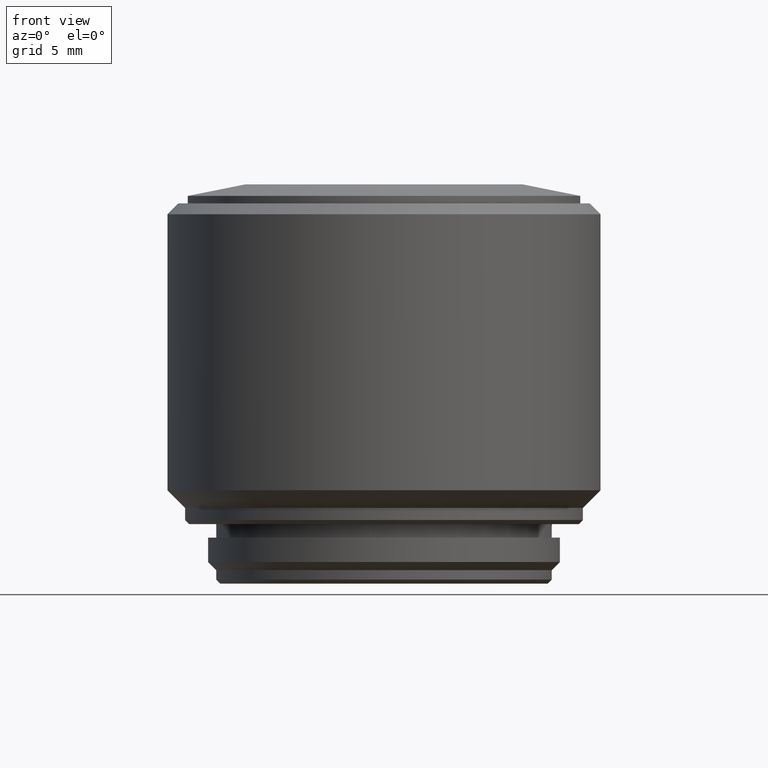
[diagram: clean part render]
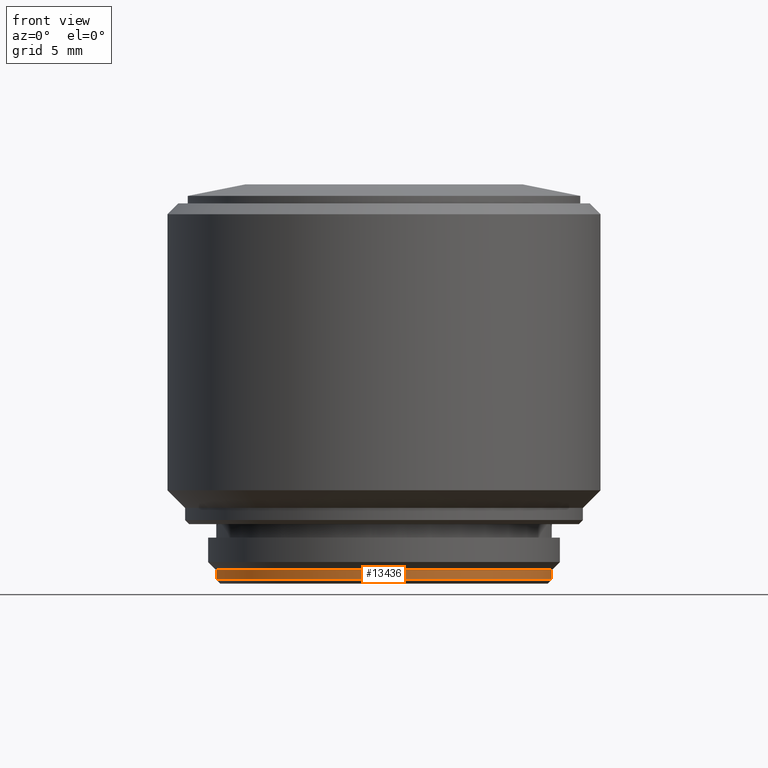
[diagram: same view with one face highlighted and labeled with its STEP entity id]
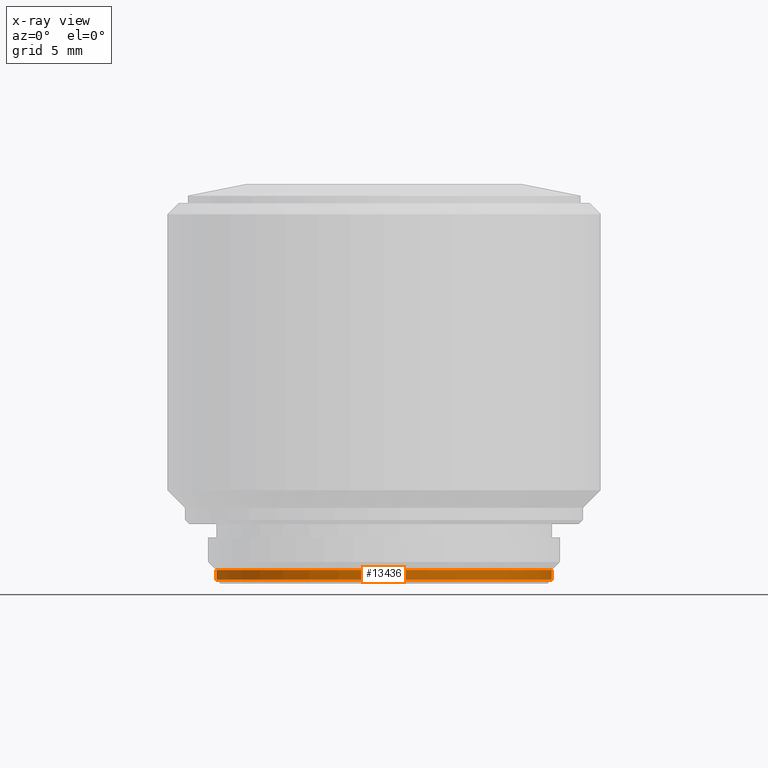
[diagram: x-ray of the same camera — body ghosted, the highlighted face saturated]
A machine part, front view. The second image highlights one B-rep face of the part: STEP entity #13436.
The next image is the same camera in x-ray: the body ghosted, the highlighted face saturated — about 0% of this face is hidden behind the body in this view.
In plain terms, the highlighted cylindrical surface (partial cylindrical patch) has radius 12.4 mm, axis along (0, 0, -1).
Its self-contained STEP definition (entity closure, byte-faithful):
#276 = EDGE_CURVE ( 'NONE', #11774, #14074, #21745, .T. ) ;
#279 = DIRECTION ( 'NONE',  ( 0.000000000000000000, 0.000000000000000000, -1.000000000000000000 ) ) ;
#409 = FACE_OUTER_BOUND ( 'NONE', #10156, .T. ) ;
#1092 = ORIENTED_EDGE ( 'NONE', *, *, #18719, .T. ) ;
#3792 = CARTESIAN_POINT ( 'NONE',  ( -12.40000000000000036, 0.000000000000000000, 1.000000000000000000 ) ) ;
#4584 = CARTESIAN_POINT ( 'NONE',  ( -12.40000000000000213, 1.518562030942718164E-15, 0.3000000000000119793 ) ) ;
#5297 = ORIENTED_EDGE ( 'NONE', *, *, #12264, .T. ) ;
#5444 = CIRCLE ( 'NONE', #5792, 12.40000000000000036 ) ;
#5792 = AXIS2_PLACEMENT_3D ( 'NONE', #7253, #7148, #14364 ) ;
#6885 = VERTEX_POINT ( 'NONE', #7626 ) ;
#7148 = DIRECTION ( 'NONE',  ( 0.000000000000000000, 0.000000000000000000, 1.000000000000000000 ) ) ;
#7167 = DIRECTION ( 'NONE',  ( 0.000000000000000000, 0.000000000000000000, -1.000000000000000000 ) ) ;
#7253 = CARTESIAN_POINT ( 'NONE',  ( 0.000000000000000000, 0.000000000000000000, 0.3000000000000119793 ) ) ;
#7626 = CARTESIAN_POINT ( 'NONE',  ( -12.40000000000000036, 1.555301434917138433E-15, 1.000000000000000000 ) ) ;
#8106 = VERTEX_POINT ( 'NONE', #4584 ) ;
#8601 = CARTESIAN_POINT ( 'NONE',  ( 0.000000000000000000, 0.000000000000000000, 1.000000000000000000 ) ) ;
#9977 = CARTESIAN_POINT ( 'NONE',  ( 12.40000000000000036, 1.518562030942717967E-15, 1.000000000000000000 ) ) ;
#10156 = EDGE_LOOP ( 'NONE', ( #16547, #1092, #14043, #5297 ) ) ;
#10677 = LINE ( 'NONE', #3792, #13250 ) ;
#10732 = AXIS2_PLACEMENT_3D ( 'NONE', #17069, #7167, #15503 ) ;
#11340 = EDGE_CURVE ( 'NONE', #6885, #8106, #10677, .T. ) ;
#11774 = VERTEX_POINT ( 'NONE', #18637 ) ;
#12012 = DIRECTION ( 'NONE',  ( 0.000000000000000000, 0.000000000000000000, -1.000000000000000000 ) ) ;
#12264 = EDGE_CURVE ( 'NONE', #8106, #14074, #5444, .T. ) ;
#12326 = CARTESIAN_POINT ( 'NONE',  ( 12.40000000000000213, 0.000000000000000000, 0.3000000000000119793 ) ) ;
#13250 = VECTOR ( 'NONE', #12012, 1000.000000000000000 ) ;
#13390 = DIRECTION ( 'NONE',  ( -1.000000000000000000, 0.000000000000000000, 0.000000000000000000 ) ) ;
#13408 = DIRECTION ( 'NONE',  ( 0.000000000000000000, 0.000000000000000000, -1.000000000000000000 ) ) ;
#13436 = ADVANCED_FACE ( 'NONE', ( #409 ), #17168, .T. ) ;
#14043 = ORIENTED_EDGE ( 'NONE', *, *, #11340, .T. ) ;
#14074 = VERTEX_POINT ( 'NONE', #12326 ) ;
#14364 = DIRECTION ( 'NONE',  ( 1.000000000000000000, 0.000000000000000000, 0.000000000000000000 ) ) ;
#15503 = DIRECTION ( 'NONE',  ( -1.000000000000000000, 0.000000000000000000, 0.000000000000000000 ) ) ;
#16547 = ORIENTED_EDGE ( 'NONE', *, *, #276, .F. ) ;
#17069 = CARTESIAN_POINT ( 'NONE',  ( 0.000000000000000000, 0.000000000000000000, 1.000000000000000000 ) ) ;
#17168 = CYLINDRICAL_SURFACE ( 'NONE', #10732, 12.40000000000000036 ) ;
#18455 = CIRCLE ( 'NONE', #21284, 12.40000000000000036 ) ;
#18637 = CARTESIAN_POINT ( 'NONE',  ( 12.40000000000000036, 0.000000000000000000, 1.000000000000000000 ) ) ;
#18719 = EDGE_CURVE ( 'NONE', #11774, #6885, #18455, .T. ) ;
#19306 = VECTOR ( 'NONE', #13408, 1000.000000000000000 ) ;
#21284 = AXIS2_PLACEMENT_3D ( 'NONE', #8601, #279, #13390 ) ;
#21745 = LINE ( 'NONE', #9977, #19306 ) ;